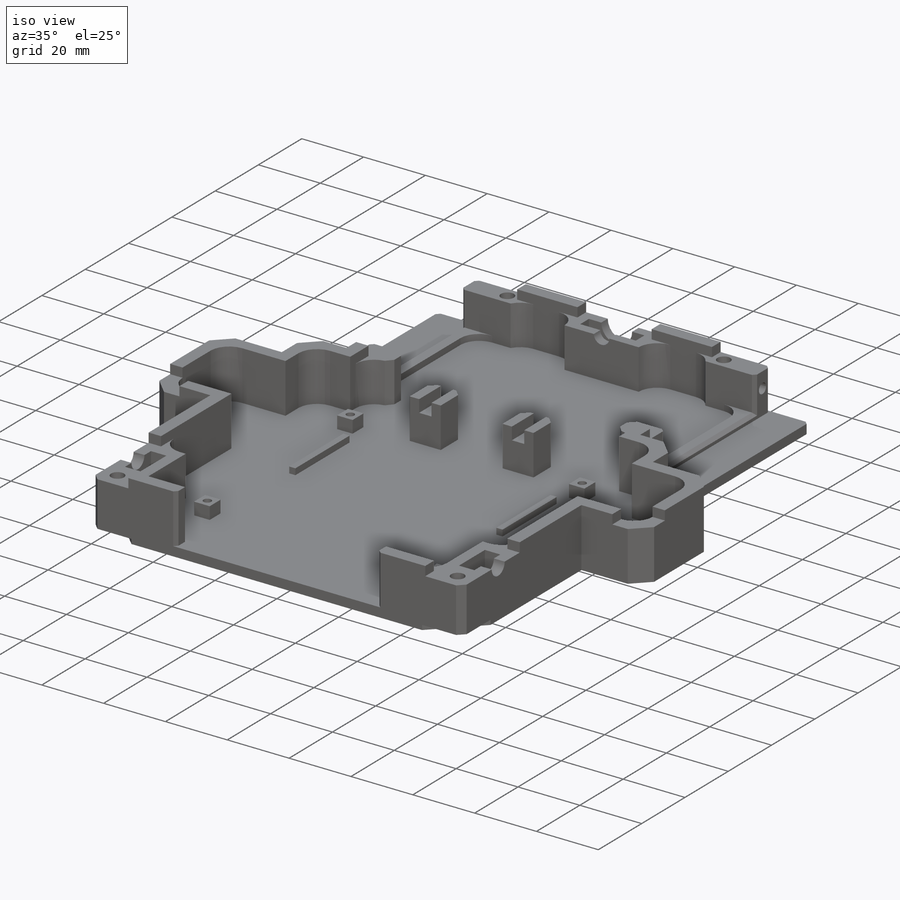
[diagram: iso view]
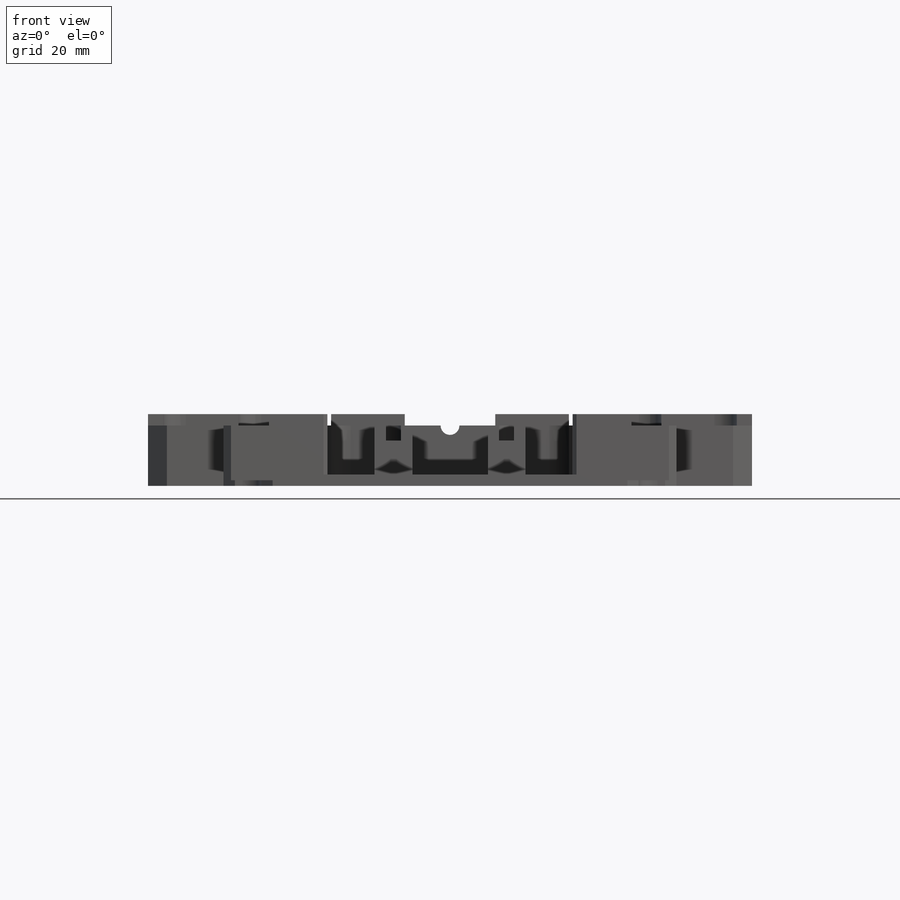
[diagram: front view]
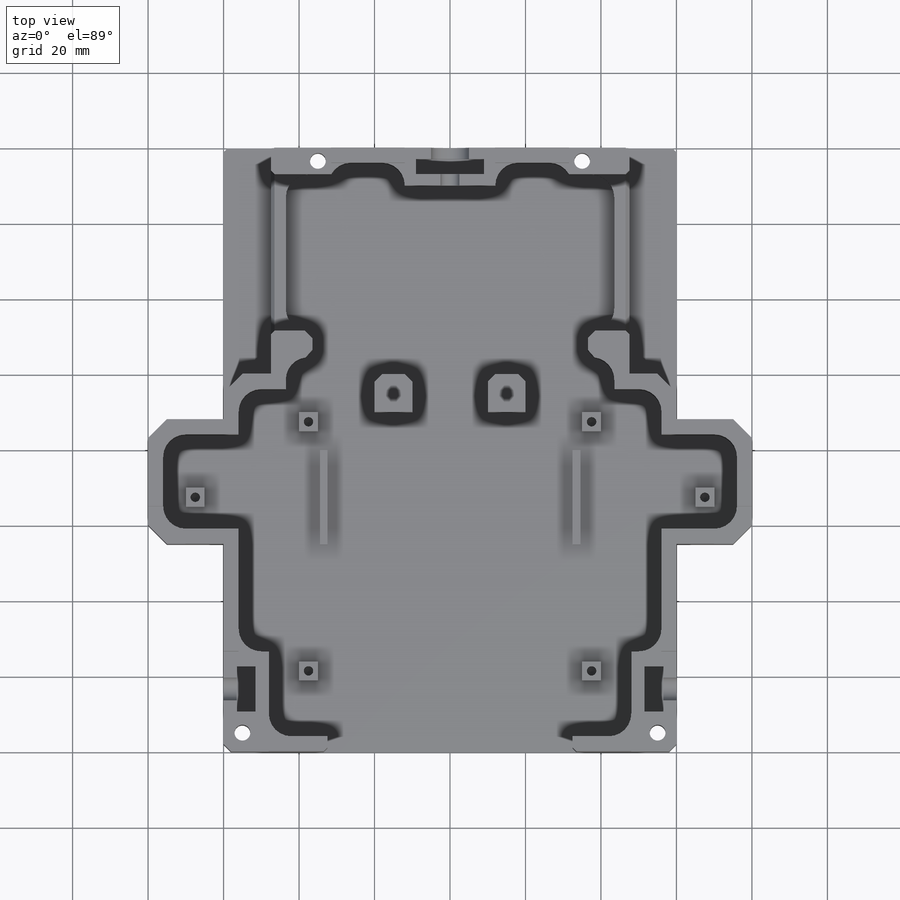
[diagram: top view]
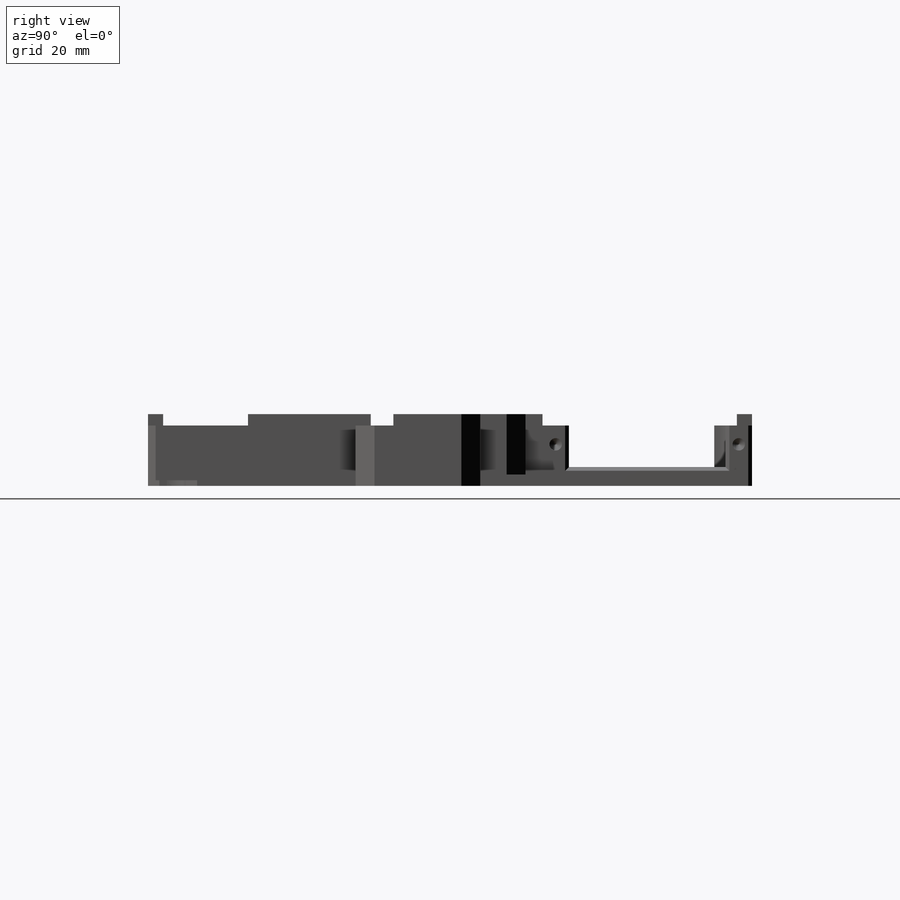
[diagram: right view]
SOLIDWORKS PART (.sldprt)
format: sldprt  version: not decoded by parser v0  size: 2,073,600 bytes
history: native  units: mm
features: sketch x23, thread x11, cut_extrude x10, extrude x7, chamfer x4, mirror x3, hole x3, material x1, plane x1, fillet x1 (+15 scaffold rows collapsed)
feature tree (79):
  scaffold x15  (default folders/planes/origin — collapsed)
  material  "PE High Density"
  sketch  "Sketch1"  dims[c1.D1=160.0mm c1.D2=95.0mm c1.D3=160.0mm c1.D4=45.0mm c1.D5=60.0mm c1.D6=55.0mm c2.D2=95.0mm c2.D6=80.0mm c2.D1=160.0mm c2.D7=120.0mm c2.D8=16.0mm c2.D9=12.0mm c2.D4=33.0mm c2.D10=16.5mm c2.D11=16.0mm c2.D12=12.0mm c3.D10=20.0mm]
  extrude  "Extrude1"  Depth=3mm
  sketch  "Sketch2"  dims[c1.D5=18.0mm c1.D6=1.0mm c1.D3=15.0mm c1.D7=15.0mm c1.D8=1.0mm c1.D9=7.5mm c1.D10=1.0mm c2.D9=12.0mm c2.D11=25.57mm c2.D12=1.0mm c2.D13=4.0mm c2.D14=2.0mm c2.D15=41.5mm c2.D16=41.5mm c2.D6=7.0mm c2.D17=7.0mm c2.D3=4.0mm c3.D13=16.0mm c3.D18=11.0mm c3.D19=12.0mm c3.D20=10.0mm c3.D4=10.0mm c3.D7=25.0mm c3.D10=10.0mm c3.D12=10.0mm c3.D14=8.5mm c3.D5=26.5mm c3.D8=12.0mm c3.D11=4.0mm c4.D14=4.0mm c4.D16=4.0mm c4.D21=4.0mm c4.D7=20.0mm c4.D1=0.0mm c4.D2=0.0mm c4.D3=0.25mm c4.D4=0.25mm c5.D2=1.0mm]
  extrude  "Extrude2"  Depth=13mm
  sketch  "Sketch3"  dims[D1=7.0mm D2=5.0mm D3=41.5mm]
  cut_extrude  "Cut-Extrude1"  Depth=17mm
  sketch  "Sketch24"
  cut_extrude  "Cut-Extrude11"  Depth=10mm
  sketch  "Sketch5"  dims[D1=5.0mm D2=4.0mm D3=2.0mm D4=3.0mm D5=4.0mm D6=2.0mm D7=3.0mm]
  cut_extrude  "Cut-Extrude2"  Depth=14.377669mm
  plane  "Plane1"  Offset=3.5mm
  sketch  "Sketch6"  dims[D1=12.0mm D2=9.93mm]
  cut_extrude  "Cut-Extrude3"  Depth=5mm
  mirror  "Mirror1"
  sketch  "Sketch17"  dims[D1=4.0mm D2=4.0mm D3=3.0mm]
  cut_extrude  "Cut-Extrude8"  Depth=18mm
  hole  "M4x0.7 Tapped Hole2"  Diameter=3.3mm Depth=9mm
  sketch  "3DSketch3"  dims[c1.D1=5.0mm c1.D2=3.5mm c1.D3=~3.496708mm c1.D4=3.5mm c2.D3=3.5mm]
  sketch  "Sketch18"  dims[hole-wizard template sketch: 47 standard entries collapsed; hole parameters kept: c15.Tap Drill Depth=9.0mm c15.D3=~14.816244mm c15.Drill Angle=118.0deg]
  thread  "Hole Thread1"  Diameter=13.3mm  [1 undecoded]
  thread  "Hole Thread2"  Diameter=13.3mm  [1 undecoded]
  thread  "Hole Thread3"  Diameter=13.3mm  [1 undecoded]
  thread  "Hole Thread4"  Diameter=13.3mm  [1 undecoded]
  sketch  "Sketch23"  dims[c1.D5=5.0mm c1.D7=5.0mm c1.D1=~3.484352mm c2.D1=45.0deg c2.D2=~6.64766mm c3.D2=45.0deg c3.D3=3.0mm c3.D4=3.0mm c3.D6=~20.399639mm c4.D6=45.0deg c4.D8=3.0mm c4.D9=3.0mm c4.D10=~4.442298mm c5.D10=45.0deg c5.D11=0.5mm c6.D11=45.0deg c6.D12=5.0mm c6.D13=5.0mm]
  cut_extrude  "Cut-Extrude10"  Depth=1.5mm
  sketch  "Sketch26"  dims[c1.D1=4.0mm c1.D2=4.0mm c1.D3=4.0mm c1.D4=4.0mm c1.D5=4.0mm c1.D6=4.0mm c1.D7=4.0mm c1.D8=65.0mm c1.D9=4.0mm c1.D10=4.0mm c2.D5=4.0mm c2.D1=4.0mm]
  extrude  "Extrude3"  Depth=16mm
  fillet  "Fillet2"  Radius=6mm
  chamfer  "Chamfer1"  Distance=2mm Angle=45deg
  chamfer  "Chamfer2"  Distance=5mm Angle=45deg
  chamfer  "Chamfer3"  Distance=1mm Angle=45deg
  sketch  "Sketch28"
  extrude  "Extrude5"  [1 undecoded]
  sketch  "Sketch29"  dims[D1=10.0mm D2=2.0mm D3=25.0mm D4=65.0mm]
  extrude  "Extrude6"  Depth=2mm
  hole  "M5x0.8 Tapped Hole1"  Diameter=4.2mm Depth=22.4mm
  sketch  "3DSketch5"
  sketch  "Sketch31"  dims[hole-wizard template sketch: 47 standard entries collapsed; hole parameters kept: c15.Tap Drill Depth=22.4mm c15.D3=~14.816244mm c15.Drill Angle=118.0deg]
  thread  "Hole Thread5"  Diameter=14.5mm  [1 undecoded]
  thread  "Hole Thread6"  Diameter=14.5mm  [1 undecoded]
  thread  "Hole Thread7"  Diameter=14.5mm  [1 undecoded]
  thread  "Hole Thread8"  Diameter=14.5mm  [1 undecoded]
  sketch  "Sketch32"  dims[D1=6.0mm]
  cut_extrude  "Cut-Extrude12"  Depth=5mm
  mirror  "Mirror2"
  sketch  "Sketch33"  dims[c1.D3=4.0mm c1.D4=4.0mm c1.D1=~7.840005mm c2.D1=45.0deg c2.D2=~7.505715mm c3.D2=90.0deg c3.D5=6.0mm c3.D6=6.0mm]
  cut_extrude  "Cut-Extrude13"  Depth=5mm
  sketch  "Sketch34"  dims[c1.D1=5.0mm c1.D2=5.0mm c1.D3=5.0mm c1.D4=10.0mm c1.D5=20.0mm c1.D6=10.0mm c1.D7=10.0mm c2.D3=15.0mm c2.D4=8.0mm c2.D5=5.0mm c2.D8=5.0mm c2.D1=5.0mm c2.D2=5.0mm c2.D6=6.0mm c2.D7=6.0mm c2.D9=5.0mm c2.D10=5.0mm c2.D11=6.0mm c3.D7=15.0mm c3.D11=25.0mm]
  extrude  "Extrude7"  Depth=4mm
  hole  "M3x0.5 Tapped Hole1"  Diameter=2.5mm Depth=4.5mm
  sketch  "3DSketch6"
  sketch  "Sketch35"  dims[hole-wizard template sketch: 50 standard entries collapsed; hole parameters above]
  thread  "Hole Thread9"  Diameter=3mm  [1 undecoded]
  thread  "Hole Thread10"  Diameter=3mm  [1 undecoded]
  thread  "Hole Thread11"  Diameter=3mm  [1 undecoded]
  mirror  "Mirror3"
  sketch  "Sketch36"  dims[D1=3.0mm D2=3.0mm D3=18.0mm]
  cut_extrude  "Cut-Extrude14"  Depth=9mm
  sketch  "Sketch37"  dims[D1=10.0mm D2=10.0mm D3=10.0mm D4=10.0mm]
  cut_extrude  "Cut-Extrude15"  [1 undecoded]
  sketch  "Sketch38"
  extrude  "Extrude8"  Depth=3mm
  chamfer  "Chamfer4"  Distance=1mm Angle=45deg
decode coverage: 52 of 62 modeling features carry decoded parameters
note: ~ marks probable driven/reference dimensions
note: 13 parameter values undecoded
note: suppression state not decoded; provenance and decode notes live in map.json
